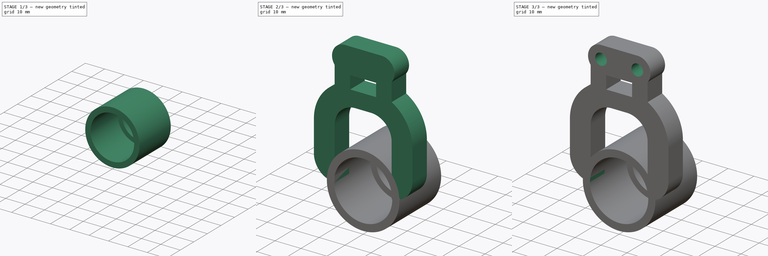
[diagram: build sequence overview — one tinted view per stage of 3, left to right]
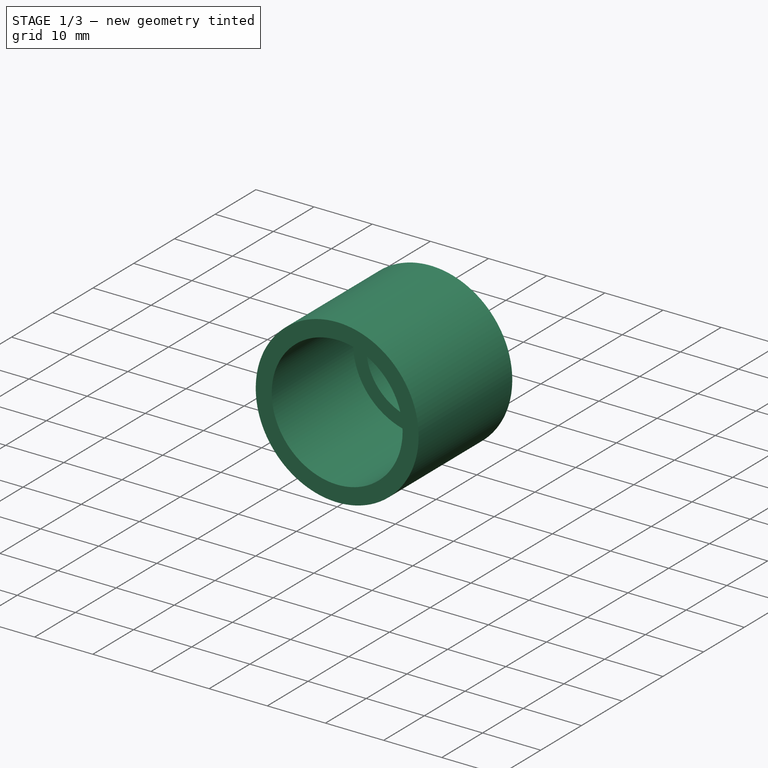
[diagram: stage 1 of 3 — iso view after this stage's code; geometry added in this stage tinted green]
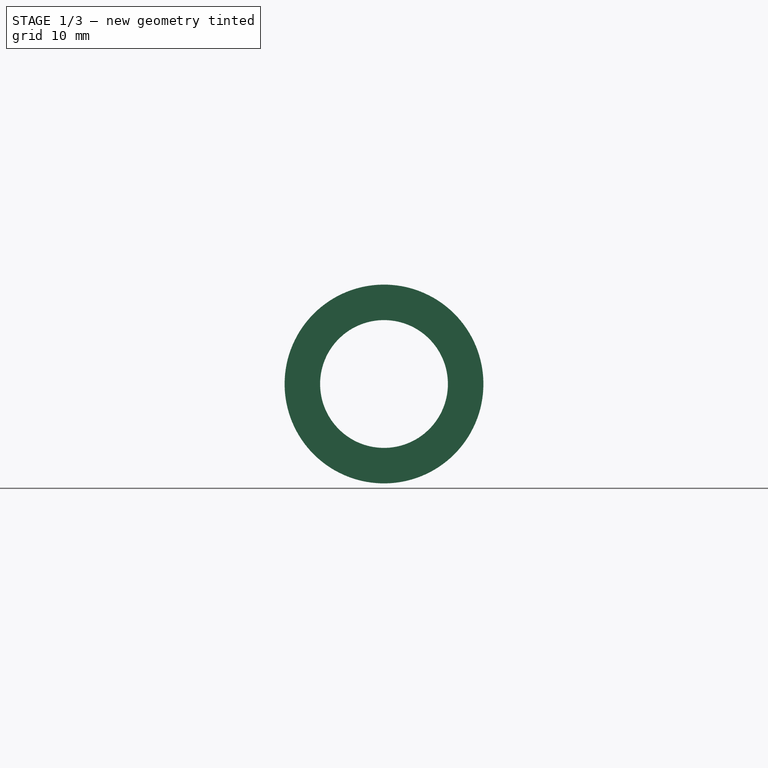
[diagram: stage 1 of 3 — front view after this stage's code; geometry added in this stage tinted green]
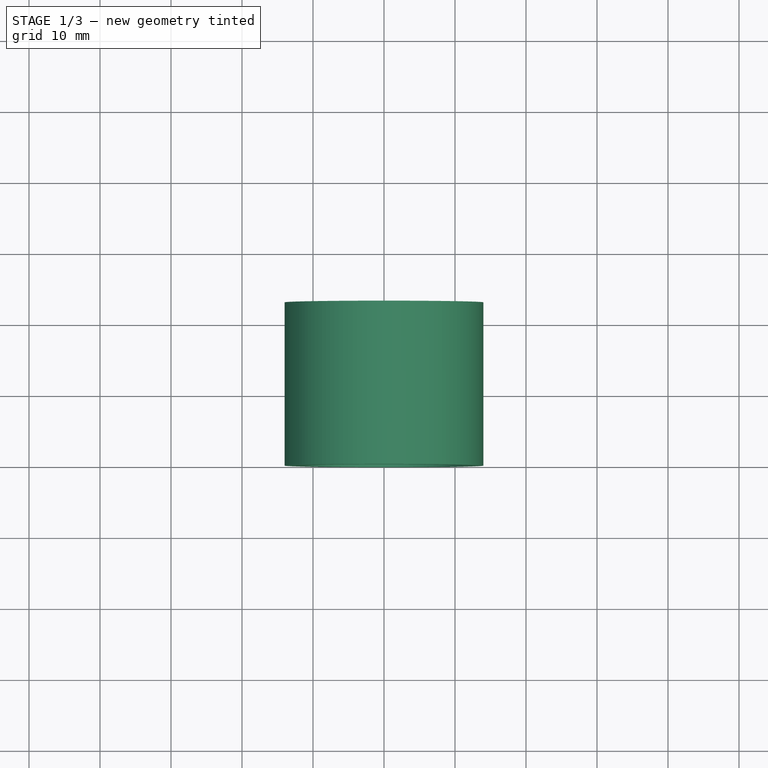
[diagram: stage 1 of 3 — top view after this stage's code; geometry added in this stage tinted green]
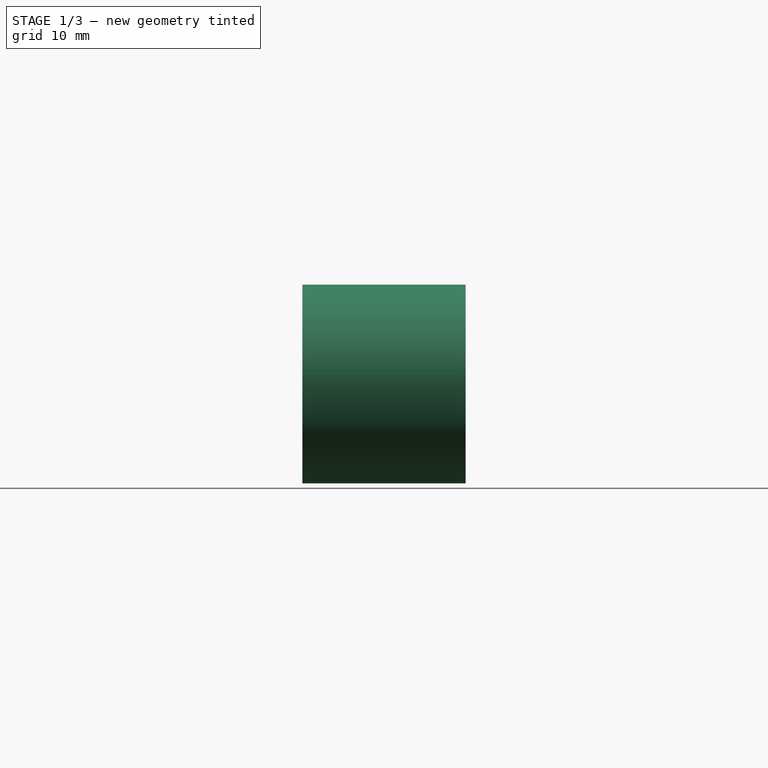
[diagram: stage 1 of 3 — right view after this stage's code; geometry added in this stage tinted green]
FCSTD DOCUMENT  (FreeCAD 1.0R38641 +678 (Git))
Label: hub
License: All rights reserved
LicenseURL: https://en.wikipedia.org/wiki/All_rights_reserved
objects: Sketcher::SketchObject×5, PartDesign::Pad×3, PartDesign::Hole×1, PartDesign::Pocket×1, PartDesign::Body×1
note: 26 computed .brp shape members not serialized (recipe doc carries the construction recipe); baked Part::Feature solids carry a one-line shape summary decoded from their .brp

FEATURE [Sketcher::SketchObject] Sketch005
  ArcFitTolerance = 0
  AttachmentSupport = -> [XZ_Plane002]
  FullyConstrained = true
  MakeInternals = false
  MapMode = 5
  Placement = pos=(0,0,0) rot=(1,0,0;1.5708rad)
  sketch-geometry (2):
    g0: Circle CenterX=0 CenterY=0 CenterZ=0 NormalX=0 NormalY=0 NormalZ=1 AngleXU=0 Radius=11.25
    g1: Circle CenterX=0 CenterY=0 CenterZ=0 NormalX=0 NormalY=0 NormalZ=1 AngleXU=0 Radius=14
  constraints (4):
    c: Diameter(g0) = 22.5
    c: Coincident(g0,g-1)
    c: Diameter(g1) = 28
    c: Coincident(g1,g0)
FEATURE [PartDesign::Pad] Pad005
  Direction = (0,-1,2e-16)
  Length = 20
  Length2 = 10
  Placement = pos=(0,0,0) rot=(1,0,0;1.5708rad)
  Profile = -> Sketch005
  ReferenceAxis = -> Sketch005 [N_Axis]
  Suppressed = false
  Type = 0
FEATURE [Sketcher::SketchObject] Sketch006
  ArcFitTolerance = 0
  AttachmentSupport = -> [Pad005]
  FullyConstrained = true
  MakeInternals = false
  MapMode = 5
  Placement = pos=(0,0,0) rot=(-1,0,0;1.5708rad)
  sketch-geometry (2):
    g0: Circle CenterX=0 CenterY=0 CenterZ=0 NormalX=0 NormalY=0 NormalZ=1 AngleXU=0 Radius=14
    g1: Circle CenterX=0 CenterY=0 CenterZ=0 NormalX=0 NormalY=0 NormalZ=1 AngleXU=0 Radius=9
  constraints (4):
    c: Diameter(g0) = 28
    c: Coincident(g0,g-1)
    c: Diameter(g1) = 18
    c: Coincident(g1,g0)
FEATURE [PartDesign::Pad] Pad006
  BaseFeature = -> Pad005
  Direction = (0,1,2e-16)
  Length = 3
  Length2 = 10
  Placement = pos=(0,0,0) rot=(1,0,0;1.5708rad)
  Profile = -> Sketch006
  ReferenceAxis = -> Sketch006 [N_Axis]
  Suppressed = false
  Type = 0
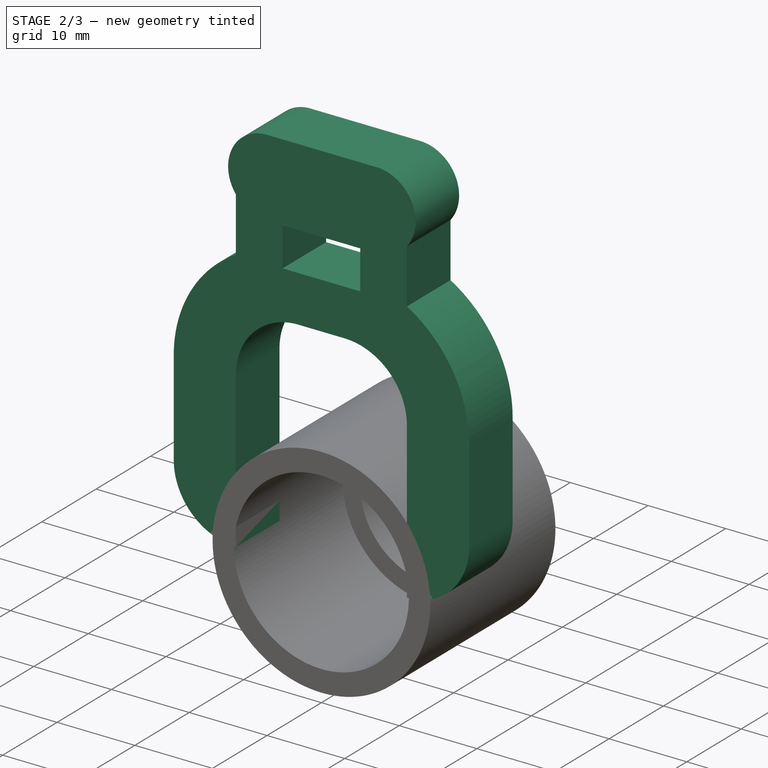
[diagram: stage 2 of 3 — iso view after this stage's code; geometry added in this stage tinted green]
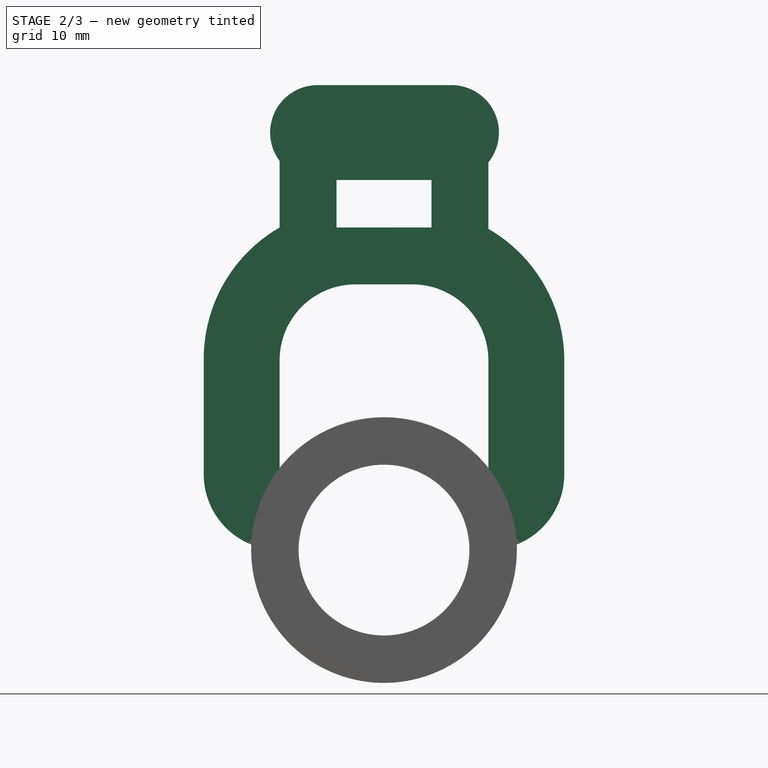
[diagram: stage 2 of 3 — front view after this stage's code; geometry added in this stage tinted green]
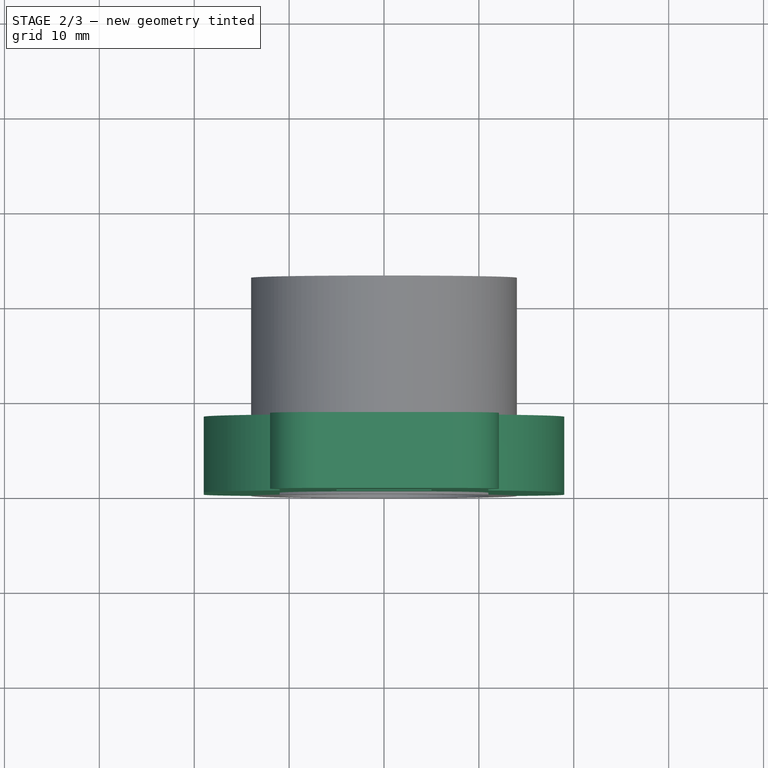
[diagram: stage 2 of 3 — top view after this stage's code; geometry added in this stage tinted green]
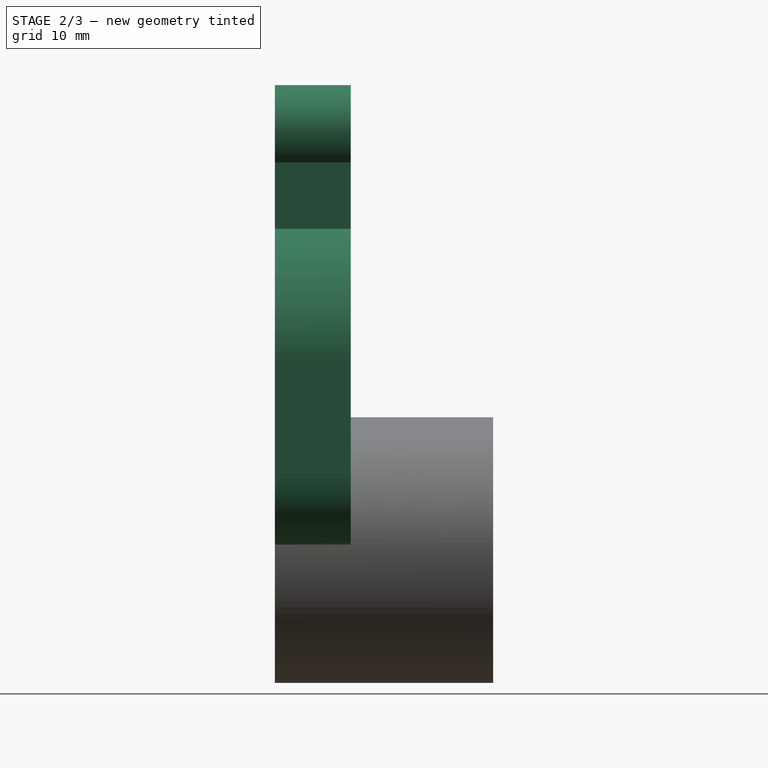
[diagram: stage 2 of 3 — right view after this stage's code; geometry added in this stage tinted green]
FEATURE [Sketcher::SketchObject] Sketch007
  ArcFitTolerance = 0
  AttachmentSupport = -> [Pad006]
  FullyConstrained = true
  MakeInternals = false
  MapMode = 5
  Placement = pos=(0,-20,4.4e-15) rot=(1,0,0;1.5708rad)
  sketch-geometry (22):
    g0: LineSegment StartX=-11 StartY=20 StartZ=0 EndX=-11 EndY=0 EndZ=0
    g1: LineSegment StartX=-19 StartY=8 StartZ=0 EndX=-19 EndY=20 EndZ=0
    g2: LineSegment StartX=19 StartY=20 StartZ=0 EndX=19 EndY=8 EndZ=0
    g3: LineSegment StartX=11 StartY=0 StartZ=0 EndX=11 EndY=20 EndZ=0
    g4: GeomPoint [constr] X=-11 Y=8 Z=0
    g5: ArcOfCircle CenterX=-11 CenterY=8 CenterZ=0 NormalX=0 NormalY=0 NormalZ=1 AngleXU=0 Radius=8 StartAngle=3.14159 EndAngle=4.71239
    g6: GeomPoint [constr] X=11 Y=8 Z=0
    g7: ArcOfCircle CenterX=11 CenterY=8 CenterZ=0 NormalX=0 NormalY=0 NormalZ=1 AngleXU=0 Radius=8 StartAngle=4.71239 EndAngle=6.28319
    g8: ArcOfCircle CenterX=-3 CenterY=20 CenterZ=0 NormalX=0 NormalY=0 NormalZ=1 AngleXU=0 Radius=8 StartAngle=1.5708 EndAngle=3.14159
    g9: ArcOfCircle CenterX=-3.00064 CenterY=20.1432 CenterZ=0 NormalX=0 NormalY=0 NormalZ=1 AngleXU=0 Radius=16 StartAngle=2.09435 EndAngle=3.15054
    g10: LineSegment StartX=-11 StartY=34 StartZ=0 EndX=-11 EndY=41 EndZ=0
    g11: ArcOfCircle CenterX=-7 CenterY=44 CenterZ=0 NormalX=0 NormalY=0 NormalZ=1 AngleXU=0 Radius=5 StartAngle=1.5708 EndAngle=3.78509
    g12: ArcOfCircle CenterX=3 CenterY=20 CenterZ=0 NormalX=0 NormalY=0 NormalZ=1 AngleXU=0 Radius=8 StartAngle=0 EndAngle=1.5708
    g13: LineSegment StartX=11 StartY=33.8564 StartZ=0 EndX=11 EndY=40.8564 EndZ=0
    g14: ArcOfCircle CenterX=3 CenterY=20 CenterZ=0 NormalX=0 NormalY=0 NormalZ=1 AngleXU=0 Radius=16 StartAngle=0 EndAngle=1.0472
    g15: ArcOfCircle CenterX=7.11287 CenterY=44.0013 CenterZ=0 NormalX=0 NormalY=0 NormalZ=1 AngleXU=0 Radius=5 StartAngle=5.60295 EndAngle=7.87656
    g16: LineSegment StartX=-7 StartY=49 StartZ=0 EndX=7 EndY=49 EndZ=0
    g17: LineSegment StartX=-3 StartY=28 StartZ=0 EndX=3 EndY=28 EndZ=0
    g18: LineSegment StartX=-5 StartY=39 StartZ=0 EndX=5 EndY=39 EndZ=0
    g19: LineSegment StartX=5 StartY=39 StartZ=0 EndX=5 EndY=34 EndZ=0
    g20: LineSegment StartX=5 StartY=34 StartZ=0 EndX=-5 EndY=34 EndZ=0
    g21: LineSegment StartX=-5 StartY=34 StartZ=0 EndX=-5 EndY=39 EndZ=0
  constraints (68):
    c: Vertical(g0)
    c: Vertical(g1)
    c: DistanceX(g1,g0) = 8
    c: DistanceX(g-2,g0) = -11
    c: Vertical(g2)
    c: Vertical(g3)
    c: DistanceX(g3,g2) = 8
    c: Distance(g-1,g3) = 11
    c: Coincident(g5,g4)
    c: Coincident(g5,g0)
    c: Coincident(g1,g5)
    c: PointOnObject(g0,g-1)
    c: PointOnObject(g5,g0)
    c: Coincident(g7,g6)
    c: Coincident(g7,g2)
    c: Coincident(g7,g3)
    c: PointOnObject(g3,g-1)
    c: PointOnObject(g7,g3)
    c: DistanceY(g-1,g1) = 8
    c: DistanceY(g-1,g2) = 8
    c: Coincident(g10,g9)
    c: Vertical(g10)
    c: Coincident(g11,g10)
    c: Vertical(g13)
    c: Coincident(g14,g12)
    c: Coincident(g14,g13)
    c: Coincident(g13,g15)
    c: Horizontal(g16)
    c: Horizontal(g17)
    c: Tangent(g11,g16) = 1.5708
    c: Coincident(g15,g16)
    c: DistanceX(g16,g16) = 14
    c: DistanceY(g13,g13) = 7
    c: DistanceY(g10,g10) = 7
    c: DistanceX(g17,g17) = 6
    c: Radius(g12) = 8
    c: Radius(g15) = 5
    c: Radius(g11) = 5
    c: Distance(g-1,g16) = 49
    c: Distance(g-1,g10) = 11
    c: Distance(g-1,g13) = 11
    c: DistanceY(g-1,g12) = 20
    c: Equal(g12,g8)
    c: Equal(g14,g9)
    c: DistanceX(g-2,g11) = -7
    c: Coincident(g0,g8)
    c: Coincident(g1,g9)
    c: DistanceY(g1,g1) = 12
    c: DistanceY(g2,g2) = 12
    c: DistanceY(g3,g3) = 20
    c: Coincident(g8,g17)
    c: Coincident(g3,g12)
    c: Coincident(g2,g14)
    c: DistanceY(g0,g0) = 20
    c: Coincident(g12,g17)
    c: Coincident(g18,g19)
    c: Coincident(g19,g20)
    c: Coincident(g20,g21)
    c: Coincident(g21,g18)
    c: Horizontal(g18)
    c: Horizontal(g20)
    c: Vertical(g19)
    c: Vertical(g21)
    c: DistanceX(g20,g20) = 10
    c: DistanceY(g21,g21) = 5
    c: Distance(g-1,g21) = 5
    c: Distance(g-1,g18) = 39
    c: Distance(g-1,g17) = 28
FEATURE [PartDesign::Pad] Pad007
  BaseFeature = -> Pad006
  Direction = (0,-1,2e-16)
  Length = 0
  Length2 = 8
  Placement = pos=(0,0,0) rot=(1,0,0;1.5708rad)
  Profile = -> Sketch007
  ReferenceAxis = -> Sketch007 [N_Axis]
  Suppressed = false
  Type = 4
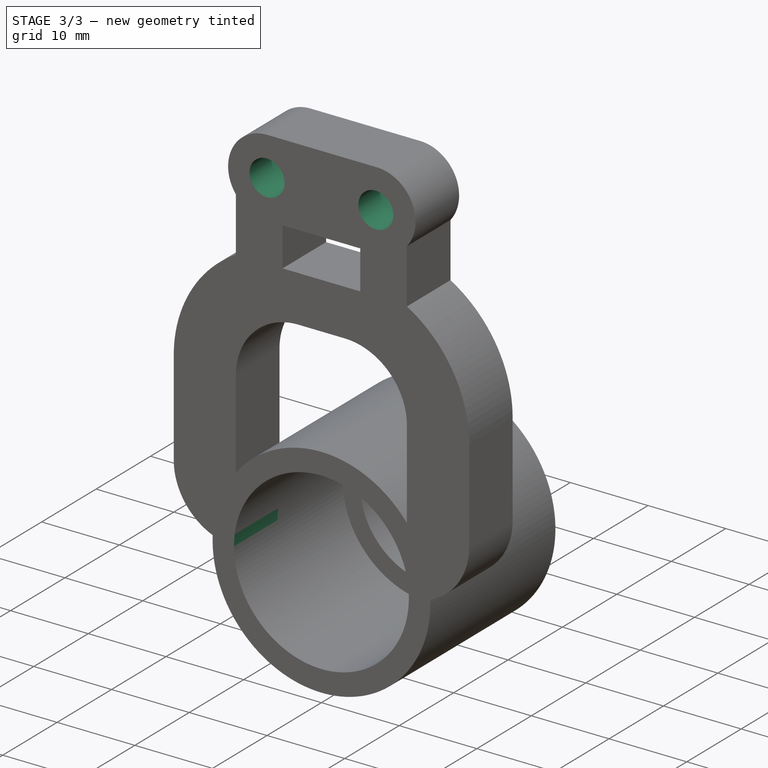
[diagram: stage 3 of 3 — iso view after this stage's code; geometry added in this stage tinted green]
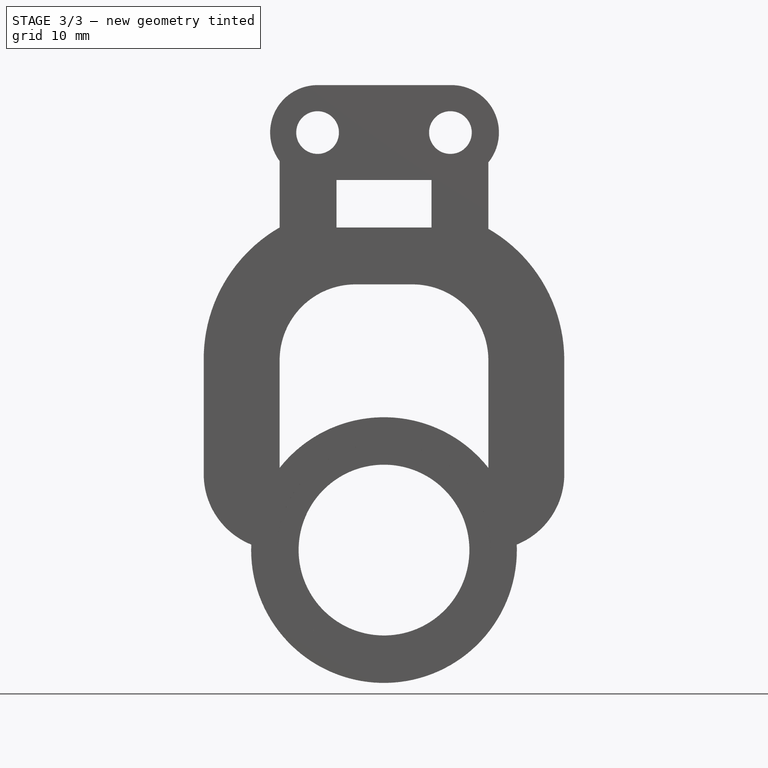
[diagram: stage 3 of 3 — front view after this stage's code; geometry added in this stage tinted green]
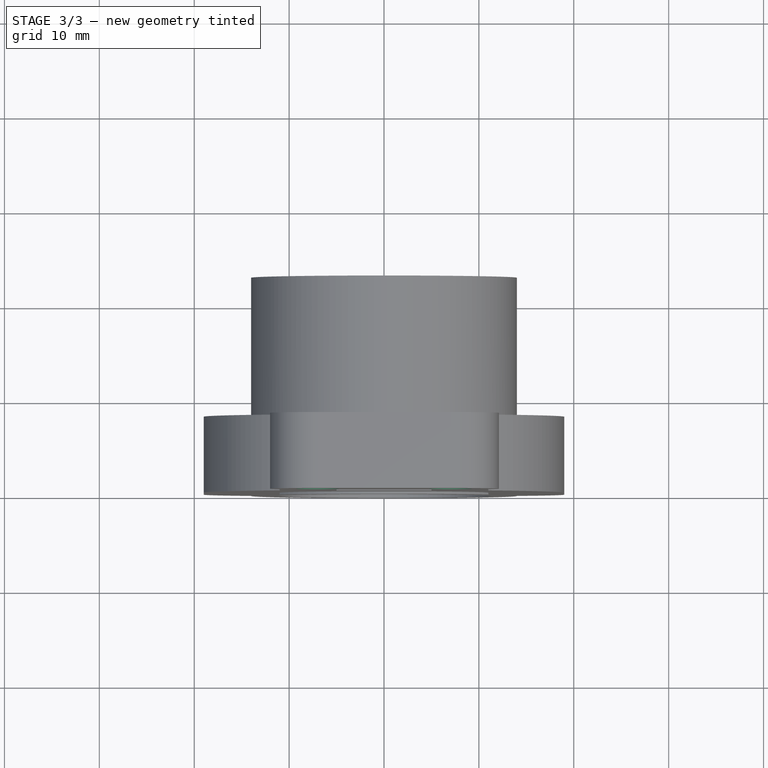
[diagram: stage 3 of 3 — top view after this stage's code; geometry added in this stage tinted green]
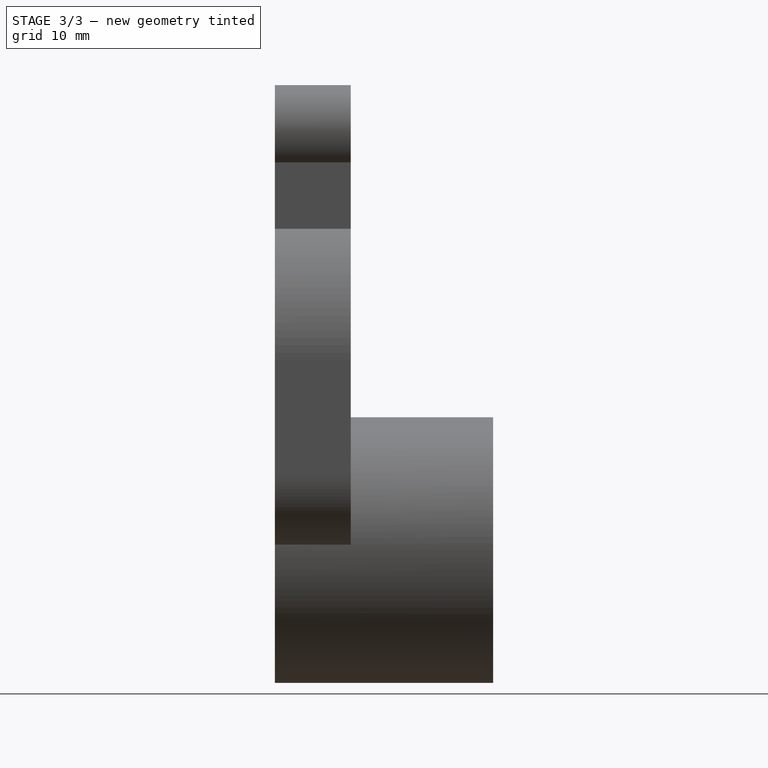
[diagram: stage 3 of 3 — right view after this stage's code; geometry added in this stage tinted green]
FEATURE [Sketcher::SketchObject] Sketch023
  ArcFitTolerance = 0
  AttachmentSupport = -> [Pad007]
  FullyConstrained = true
  MakeInternals = false
  MapMode = 5
  Placement = pos=(0,-12,2.8e-15) rot=(-1,0,0;1.5708rad)
  sketch-geometry (2):
    g0: Circle CenterX=-7 CenterY=-44 CenterZ=0 NormalX=0 NormalY=0 NormalZ=1 AngleXU=0 Radius=2.25
    g1: Circle CenterX=7 CenterY=-44 CenterZ=0 NormalX=0 NormalY=0 NormalZ=1 AngleXU=0 Radius=2.25
  constraints (6):
    c: Diameter(g0) = 4.5
    c: Diameter(g1) = 4.5
    c: DistanceX(g-2,g0) = -7
    c: DistanceX(g-2,g1) = 7
    c: DistanceY(g-1,g0) = -44
    c: DistanceY(g-1,g1) = -44
FEATURE [PartDesign::Hole] Hole
  BaseFeature = -> Pad007
  CustomThreadClearance = 0
  Depth = 25
  DepthType = 0
  Diameter = 4.5
  DrillForDepth = false
  DrillPoint = 1
  DrillPointAngle = 118
  HoleCutCountersinkAngle = 90
  HoleCutCustomValues = false
  HoleCutDepth = 4
  HoleCutDiameter = 7.5
  HoleCutType = 1
  ModelThread = false
  Placement = pos=(0,0,0) rot=(1,0,0;1.5708rad)
  Profile = -> Sketch023
  Suppressed = false
  Tapered = false
  TaperedAngle = 90
  ThreadClass = 0
  ThreadDepth = 25
  ThreadDepthType = 0
  ThreadDirection = 0
  ThreadFit = 0
  ThreadSize = 0
  ThreadType = 0
  Threaded = false
  UseCustomThreadClearance = false
FEATURE [Sketcher::SketchObject] Sketch032
  ArcFitTolerance = 0
  AttachmentSupport = -> [Hole]
  FullyConstrained = true
  MakeInternals = false
  MapMode = 5
  Placement = pos=(0,-20,4.4e-15) rot=(1,0,0;1.5708rad)
  sketch-geometry (1):
    g0: Circle CenterX=0 CenterY=0 CenterZ=0 NormalX=0 NormalY=0 NormalZ=1 AngleXU=0 Radius=11.25
  constraints (2):
    c: Coincident(g0,g-1)
    c: Diameter(g0) = 22.5
FEATURE [PartDesign::Pocket] Pocket002
  BaseFeature = -> Hole
  Direction = (0,1,-2e-16)
  Length = 10
  Length2 = 5
  Placement = pos=(0,0,0) rot=(1,0,0;1.5708rad)
  Profile = -> Sketch032
  ReferenceAxis = -> Sketch032 [N_Axis]
  Suppressed = false
  Type = 0
FEATURE [PartDesign::Body] Body002  label="hub"
  AllowCompound = false
  Group = -> [Sketch005,Pad005,Sketch006,Pad006,Sketch007,Pad007,Sketch023,Hole,Sketch032,Pocket002]
  Origin = -> Origin002
  Placement = pos=(19,198,62) rot=(0,1,0;3.14159rad)
  Tip = -> Pocket002
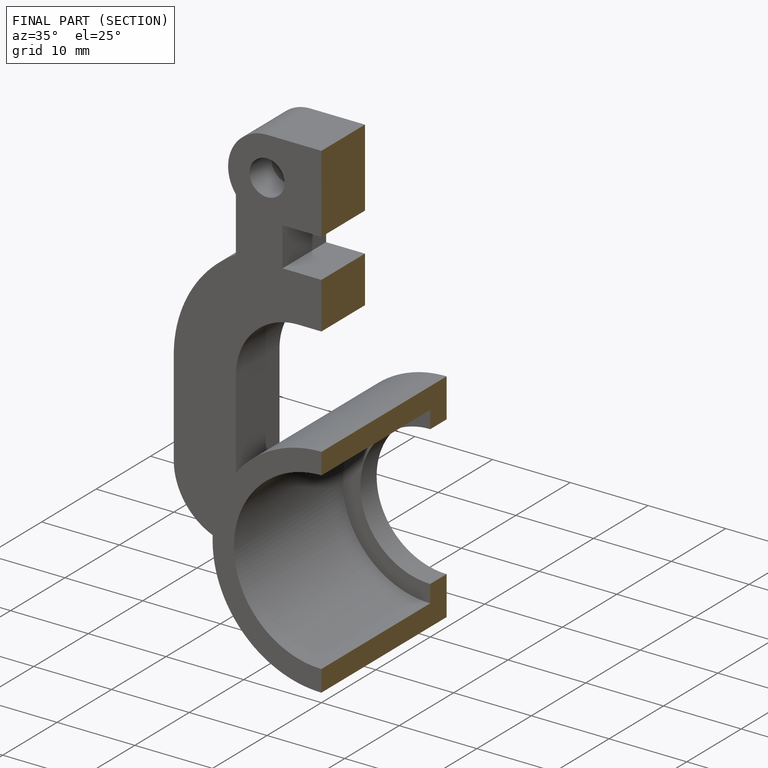
[diagram: finished part — half-section view (interior)]
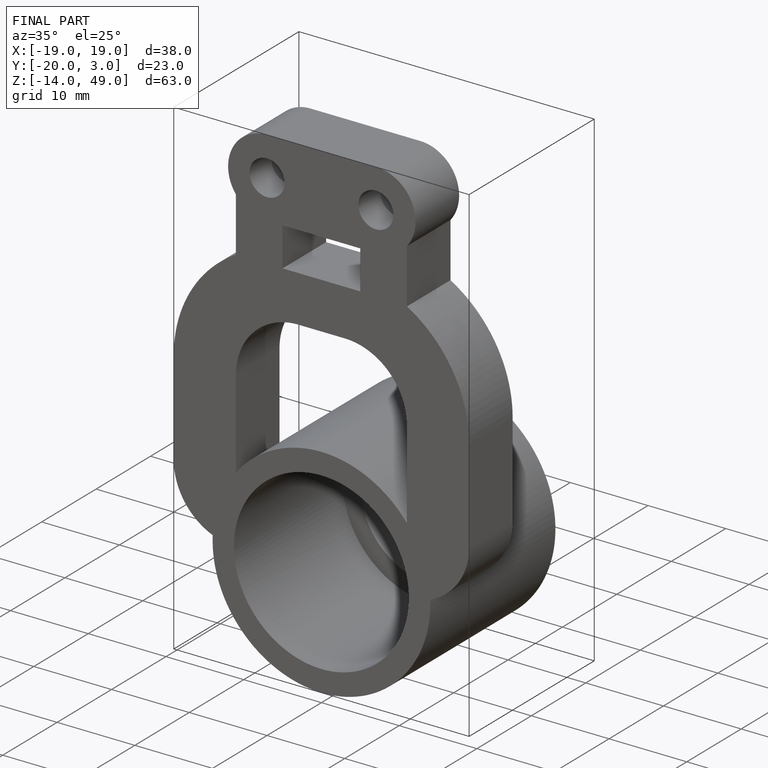
[diagram: finished part — iso view with bounding-box wireframe]
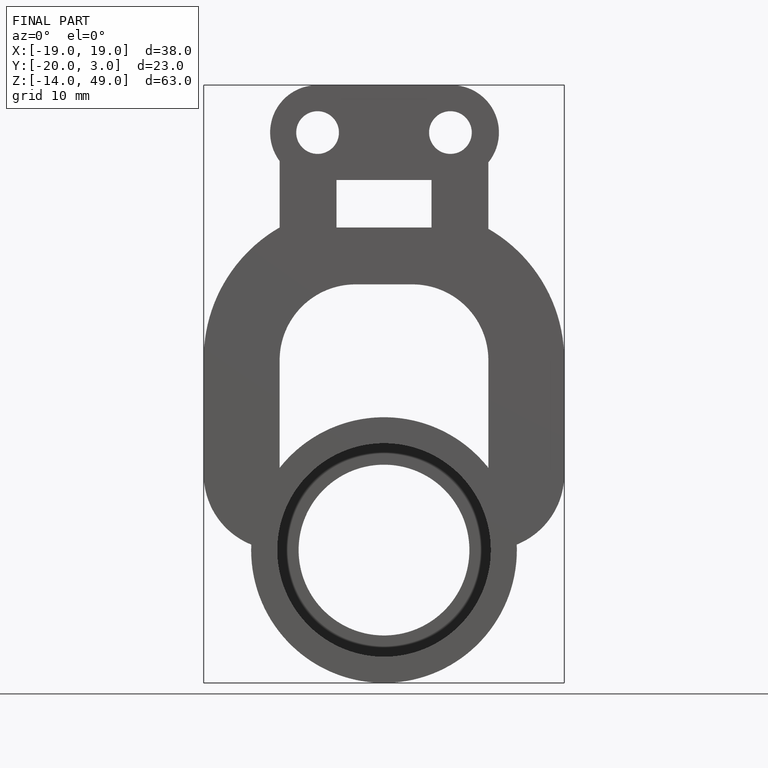
[diagram: finished part — front view with bounding-box wireframe]
